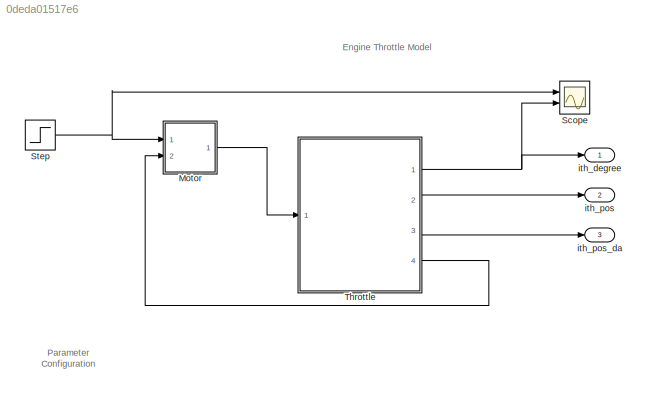
MODEL slx_0deda01517e6
KIND model
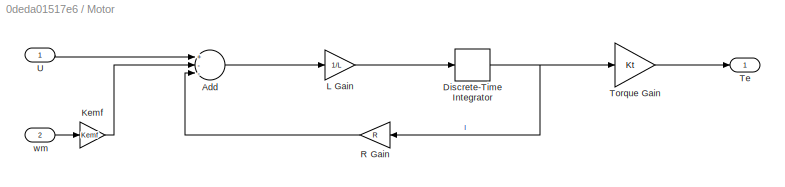
BLOCK [SubSystem] Motor
  FunctionWithSeparateData = off
  MaskHideContents = off
  MinAlgLoopOccurrences = off
  Opaque = off
  Ports = [2, 1]
  PropExecContextOutsideSubsystem = off
  RTWSystemCode = Auto
  RequestExecContextInheritance = off
BLOCK [Sum] Motor/Add
  InputSameDT = off
  Inputs = +--
  OutDataTypeStr = fixdt(1,32,26)
  Ports = [3, 1]
  SaturateOnIntegerOverflow = off
BLOCK [DiscreteIntegrator] Motor/Discrete-Time Integrator
  ICPrevOutput = DiscIntNeverNeededParam
  ICPrevScaledInput = DiscIntNeverNeededParam
  OutDataTypeStr = fixdt(1,32,22)
  Ports = [1, 1]
  SampleTime = Ts
BLOCK [Gain] Motor/Kemf
  Gain = Kemf
  OutDataTypeStr = fixdt(1,32,28)
  ParamDataTypeStr = Inherit: Inherit via internal rule
  SaturateOnIntegerOverflow = off
BLOCK [Gain] Motor/L Gain
  Gain = 1/L
  OutDataTypeStr = fixdt(1,32,24)
  ParamDataTypeStr = Inherit: Inherit via internal rule
  SaturateOnIntegerOverflow = off
BLOCK [Gain] Motor/R Gain
  Gain = R
  OutDataTypeStr = fixdt(1,32,26)
  ParamDataTypeStr = Inherit: Inherit via internal rule
  SaturateOnIntegerOverflow = off
BLOCK [Outport] Motor/Te
  IconDisplay = Port number
BLOCK [Gain] Motor/Torque Gain
  Gain = Kt
  OutDataTypeStr = fixdt(1,32,23)
  SaturateOnIntegerOverflow = off
BLOCK [Inport] Motor/U
  IconDisplay = Port number
BLOCK [Inport] Motor/wm
  IconDisplay = Port number
  Port = 2
BLOCK [Scope] Scope
  DataFormat = StructureWithTime
  Floating = off
  LimitDataPoints = off
  NumInputPorts = 2
  Ports = [2]
  SampleTime = 0
  ShowLegends = off
  YMax = 5~5
  YMin = -5~-5
BLOCK [Step] Step
  After = -12
  Before = 12
  SampleTime = 0
  Time = .5
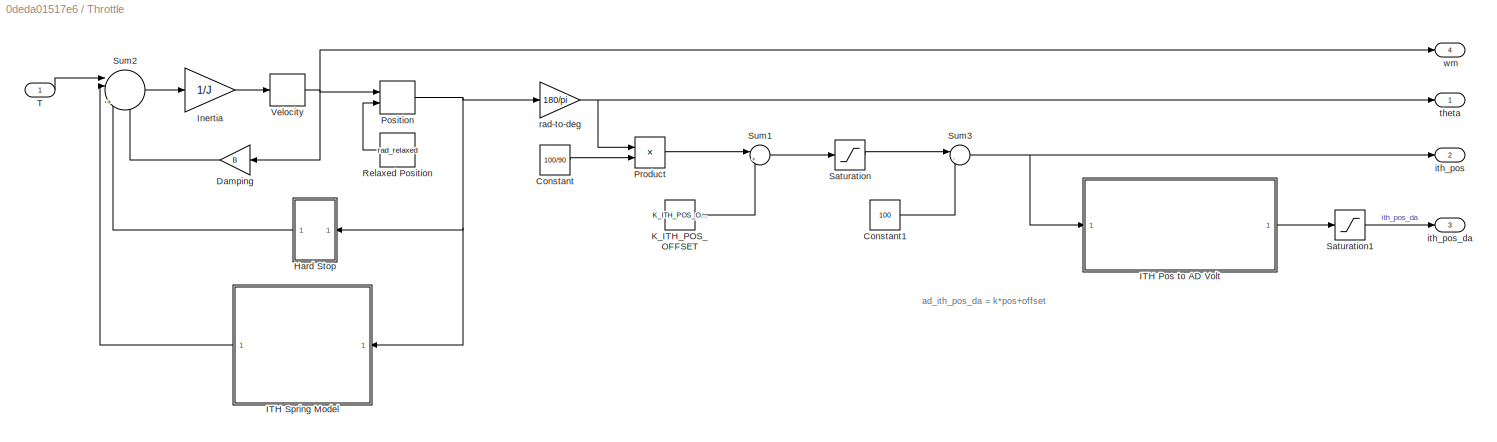
BLOCK [SubSystem] Throttle
  FunctionWithSeparateData = off
  MaskHideContents = off
  MinAlgLoopOccurrences = off
  Opaque = off
  Ports = [1, 4]
  PropExecContextOutsideSubsystem = off
  RTWSystemCode = Auto
  RequestExecContextInheritance = off
BLOCK [Constant] Throttle/Constant
  OutDataTypeStr = fixdt(1,32,30)
  Value = 100/90
BLOCK [Constant] Throttle/Constant1
  OutDataTypeStr = fixdt(1,32,24)
  Value = 100
BLOCK [Gain] Throttle/Damping
  Gain = B
  OutDataTypeStr = fixdt(1,32,23)
  ParamDataTypeStr = Inherit: Inherit via internal rule
  SaturateOnIntegerOverflow = off
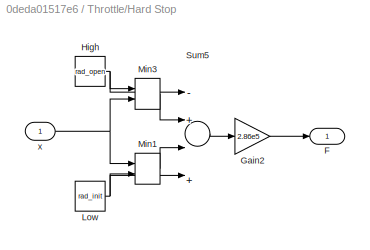
BLOCK [SubSystem] Throttle/Hard Stop
  FunctionWithSeparateData = off
  MaskHideContents = off
  MinAlgLoopOccurrences = off
  Opaque = off
  Ports = [1, 1]
  PropExecContextOutsideSubsystem = off
  RTWSystemCode = Auto
  RequestExecContextInheritance = off
BLOCK [Outport] Throttle/Hard Stop/F
  IconDisplay = Port number
BLOCK [Gain] Throttle/Hard Stop/Gain2
  Gain = 2.86e5
  OutDataTypeStr = fixdt(1,32,18)
  SaturateOnIntegerOverflow = off
BLOCK [Constant] Throttle/Hard Stop/High
  OutDataTypeStr = fixdt(1,32,30)
  Value = rad_open
BLOCK [Constant] Throttle/Hard Stop/Low
  OutDataTypeStr = fixdt(1,32,13)
  Value = rad_init
BLOCK [MinMax] Throttle/Hard Stop/Min1
  InputSameDT = off
  Inputs = 2
  OutDataTypeStr = fixdt(1,32,30)
  Ports = [2, 1]
BLOCK [MinMax] Throttle/Hard Stop/Min3
  Function = max
  InputSameDT = off
  Inputs = 2
  OutDataTypeStr = fixdt(1,32,30)
  Ports = [2, 1]
BLOCK [Sum] Throttle/Hard Stop/Sum5
  InputSameDT = off
  Inputs = -+||+-
  OutDataTypeStr = fixdt(1,32,12)
  Ports = [4, 1]
BLOCK [Inport] Throttle/Hard Stop/x
  IconDisplay = Port number
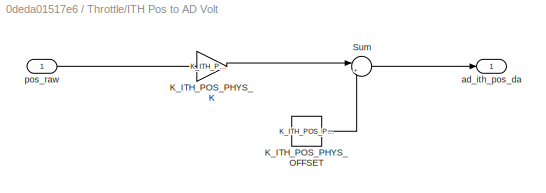
BLOCK [SubSystem] Throttle/ITH Pos to AD Volt
  FunctionWithSeparateData = off
  MaskHideContents = off
  MinAlgLoopOccurrences = off
  Opaque = off
  Ports = [1, 1]
  PropExecContextOutsideSubsystem = off
  RTWSystemCode = Auto
  RequestExecContextInheritance = off
BLOCK [Gain] Throttle/ITH Pos to AD Volt/K_ITH_POS_PHYS_K
  Gain = K_ITH_POS_PHYS_K
  OutDataTypeStr = fixdt(1,32,19)
  ParamDataTypeStr = Inherit: Inherit via internal rule
  SaturateOnIntegerOverflow = off
BLOCK [Constant] Throttle/ITH Pos to AD Volt/K_ITH_POS_PHYS_OFFSET
  OutDataTypeStr = fixdt(1,32,21)
  Value = K_ITH_POS_PHYS_OFFSET
BLOCK [Sum] Throttle/ITH Pos to AD Volt/Sum
  IconShape = round
  InputSameDT = off
  Inputs = |++
  OutDataTypeStr = fixdt(1,32,19)
  Ports = [2, 1]
  SaturateOnIntegerOverflow = off
BLOCK [Outport] Throttle/ITH Pos to AD Volt/ad_ith_pos_da
  IconDisplay = Port number
BLOCK [Inport] Throttle/ITH Pos to AD Volt/pos_raw
  IconDisplay = Port number
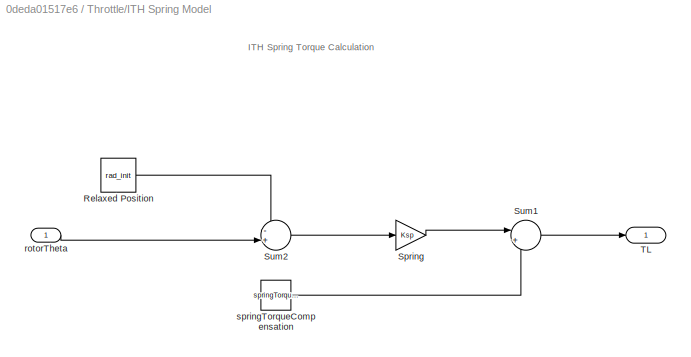
BLOCK [SubSystem] Throttle/ITH Spring Model
  FunctionWithSeparateData = off
  MaskHideContents = off
  MinAlgLoopOccurrences = off
  MinMaxOverflowLogging = MinMaxAndOverflow
  Opaque = off
  Ports = [1, 1]
  PropExecContextOutsideSubsystem = off
  RTWSystemCode = Auto
  RequestExecContextInheritance = off
BLOCK [Constant] Throttle/ITH Spring Model/Relaxed Position
  OutDataTypeStr = fixdt(1,32,13)
  Value = rad_init
BLOCK [Gain] Throttle/ITH Spring Model/Spring
  Gain = Ksp
  OutDataTypeStr = fixdt(1,32,25)
  ParamDataTypeStr = Inherit: Inherit via internal rule
  SaturateOnIntegerOverflow = off
BLOCK [Sum] Throttle/ITH Spring Model/Sum1
  IconShape = round
  InputSameDT = off
  Inputs = |++
  OutDataTypeStr = fixdt(1,32,25)
  Ports = [2, 1]
  SaturateOnIntegerOverflow = off
BLOCK [Sum] Throttle/ITH Spring Model/Sum2
  IconShape = round
  InputSameDT = off
  Inputs = -+|
  OutDataTypeStr = fixdt(1,32,30)
  Ports = [2, 1]
  SaturateOnIntegerOverflow = off
BLOCK [Outport] Throttle/ITH Spring Model/TL
  IconDisplay = Port number
BLOCK [Inport] Throttle/ITH Spring Model/rotorTheta
  IconDisplay = Port number
BLOCK [Constant] Throttle/ITH Spring Model/springTorqueCompensation
  OutDataTypeStr = fixdt(1,32,13)
  Value = springTorqueCompensation
BLOCK [Gain] Throttle/Inertia
  Gain = 1/J
  OutDataTypeStr = fixdt(1,32,17)
  SaturateOnIntegerOverflow = off
BLOCK [Constant] Throttle/K_ITH_POS_OFFSET
  OutDataTypeStr = fixdt(1,32,13)
  Value = K_ITH_POS_OFFSET
BLOCK [DiscreteIntegrator] Throttle/Position
  ICPrevOutput = DiscIntNeverNeededParam
  ICPrevScaledInput = DiscIntNeverNeededParam
  InitialConditionSource = external
  OutDataTypeStr = fixdt(1,32,30)
  Ports = [2, 1]
  SampleTime = Ts
BLOCK [Product] Throttle/Product
  InputSameDT = off
  OutDataTypeStr = fixdt(1,32,24)
  Ports = [2, 1]
  RndMeth = Floor
  SaturateOnIntegerOverflow = off
BLOCK [Constant] Throttle/Relaxed Position
  OutDataTypeStr = fixdt(1,32,30)
  Value = rad_relaxed
BLOCK [Saturate] Throttle/Saturation
  InputPortMap = u0
  LowerLimit = -25
  OutDataTypeStr = fixdt(1,32,24)
  Ports = [1, 1]
  UpperLimit = 125
BLOCK [Saturate] Throttle/Saturation1
  InputPortMap = u0
  LowerLimit = 0
  OutDataTypeStr = fixdt(0,16,4)
  Ports = [1, 1]
  UpperLimit = 4095
BLOCK [Sum] Throttle/Sum1
  IconShape = round
  InputSameDT = off
  Inputs = |++
  OutDataTypeStr = fixdt(1,32,24)
  Ports = [2, 1]
  SaturateOnIntegerOverflow = off
BLOCK [Sum] Throttle/Sum2
  IconShape = round
  InputSameDT = off
  Inputs = |||+---
  OutDataTypeStr = fixdt(1,32,18)
  Ports = [4, 1]
BLOCK [Sum] Throttle/Sum3
  IconShape = round
  InputSameDT = off
  Inputs = |-+
  OutDataTypeStr = fixdt(1,32,24)
  Ports = [2, 1]
  SaturateOnIntegerOverflow = off
BLOCK [Inport] Throttle/T
  IconDisplay = Port number
BLOCK [DiscreteIntegrator] Throttle/Velocity
  ICPrevOutput = DiscIntNeverNeededParam
  ICPrevScaledInput = DiscIntNeverNeededParam
  OutDataTypeStr = fixdt(1,32,26)
  Ports = [1, 1]
  SampleTime = Ts
BLOCK [Outport] Throttle/ith_pos
  IconDisplay = Port number
  Port = 2
BLOCK [Outport] Throttle/ith_pos_da
  IconDisplay = Port number
  Port = 3
BLOCK [Gain] Throttle/rad-to-deg
  Gain = 180/pi
  OutDataTypeStr = fixdt(1,32,24)
  ParamDataTypeStr = Inherit: Inherit via internal rule
  SaturateOnIntegerOverflow = off
BLOCK [Outport] Throttle/theta
  IconDisplay = Port number
BLOCK [Outport] Throttle/wm
  IconDisplay = Port number
  Port = 4
BLOCK [Outport] ith_degree
  IconDisplay = Port number
BLOCK [Outport] ith_pos
  IconDisplay = Port number
  Port = 2
BLOCK [Outport] ith_pos_da
  IconDisplay = Port number
  Port = 3
ANNOTATION (root): Engine Throttle Model
ANNOTATION (root): Parameter Configuration
ANNOTATION Throttle: ad_ith_pos_da = k*pos+offset
ANNOTATION Throttle/ITH Spring Model: ITH Spring Torque Calculation
LINE Motor/Add:1 -> Motor/L Gain:1
NET Motor/Discrete-Time Integrator:1 -> Motor/R Gain:1, Motor/Torque Gain:1
LINE Motor/Kemf:1 -> Motor/Add:2
LINE Motor/L Gain:1 -> Motor/Discrete-Time Integrator:1
LINE Motor/R Gain:1 -> Motor/Add:3
LINE Motor/Torque Gain:1 -> Motor/Te:1
LINE Motor/U:1 -> Motor/Add:1
LINE Motor/wm:1 -> Motor/Kemf:1
LINE Motor:1 -> Throttle:1
NET Step:1 -> Motor:1, Scope:1
LINE Throttle/Constant1:1 -> Throttle/Sum3:2
LINE Throttle/Constant:1 -> Throttle/Product:2
LINE Throttle/Damping:1 -> Throttle/Sum2:4
LINE Throttle/Hard Stop/Gain2:1 -> Throttle/Hard Stop/F:1
NET Throttle/Hard Stop/High:1 -> Throttle/Hard Stop/Min3:1, Throttle/Hard Stop/Sum5:1
NET Throttle/Hard Stop/Low:1 -> Throttle/Hard Stop/Min1:2, Throttle/Hard Stop/Sum5:4
LINE Throttle/Hard Stop/Min1:1 -> Throttle/Hard Stop/Sum5:3
LINE Throttle/Hard Stop/Min3:1 -> Throttle/Hard Stop/Sum5:2
LINE Throttle/Hard Stop/Sum5:1 -> Throttle/Hard Stop/Gain2:1
NET Throttle/Hard Stop/x:1 -> Throttle/Hard Stop/Min1:1, Throttle/Hard Stop/Min3:2
LINE Throttle/Hard Stop:1 -> Throttle/Sum2:3
LINE Throttle/ITH Pos to AD Volt/K_ITH_POS_PHYS_K:1 -> Throttle/ITH Pos to AD Volt/Sum:1
LINE Throttle/ITH Pos to AD Volt/K_ITH_POS_PHYS_OFFSET:1 -> Throttle/ITH Pos to AD Volt/Sum:2
LINE Throttle/ITH Pos to AD Volt/Sum:1 -> Throttle/ITH Pos to AD Volt/ad_ith_pos_da:1
LINE Throttle/ITH Pos to AD Volt/pos_raw:1 -> Throttle/ITH Pos to AD Volt/K_ITH_POS_PHYS_K:1
LINE Throttle/ITH Pos to AD Volt:1 -> Throttle/Saturation1:1
LINE Throttle/ITH Spring Model/Relaxed Position:1 -> Throttle/ITH Spring Model/Sum2:1
LINE Throttle/ITH Spring Model/Spring:1 -> Throttle/ITH Spring Model/Sum1:1
LINE Throttle/ITH Spring Model/Sum1:1 -> Throttle/ITH Spring Model/TL:1
LINE Throttle/ITH Spring Model/Sum2:1 -> Throttle/ITH Spring Model/Spring:1
LINE Throttle/ITH Spring Model/rotorTheta:1 -> Throttle/ITH Spring Model/Sum2:2
LINE Throttle/ITH Spring Model/springTorqueCompensation:1 -> Throttle/ITH Spring Model/Sum1:2
LINE Throttle/ITH Spring Model:1 -> Throttle/Sum2:2
LINE Throttle/Inertia:1 -> Throttle/Velocity:1
LINE Throttle/K_ITH_POS_OFFSET:1 -> Throttle/Sum1:2
NET Throttle/Position:1 -> Throttle/Hard Stop:1, Throttle/ITH Spring Model:1, Throttle/rad-to-deg:1
LINE Throttle/Product:1 -> Throttle/Sum1:1
LINE Throttle/Relaxed Position:1 -> Throttle/Position:2
LINE Throttle/Saturation1:1 -> Throttle/ith_pos_da:1
LINE Throttle/Saturation:1 -> Throttle/Sum3:1
LINE Throttle/Sum1:1 -> Throttle/Saturation:1
LINE Throttle/Sum2:1 -> Throttle/Inertia:1
NET Throttle/Sum3:1 -> Throttle/ITH Pos to AD Volt:1, Throttle/ith_pos:1
LINE Throttle/T:1 -> Throttle/Sum2:1
NET Throttle/Velocity:1 -> Throttle/Damping:1, Throttle/Position:1, Throttle/wm:1
NET Throttle/rad-to-deg:1 -> Throttle/Product:1, Throttle/theta:1
NET Throttle:1 -> Scope:2, ith_degree:1
LINE Throttle:2 -> ith_pos:1
LINE Throttle:3 -> ith_pos_da:1
LINE Throttle:4 -> Motor:2
note: NET lines group one-source signal fan-out (src -> all destinations, sorted); 1:1 wires keep LINE
